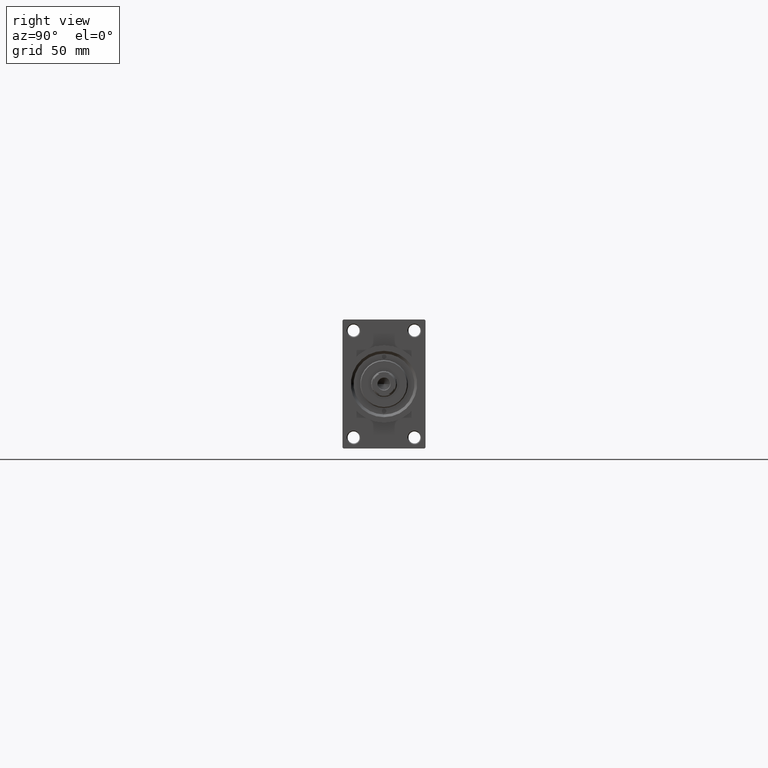
[diagram: clean part render]
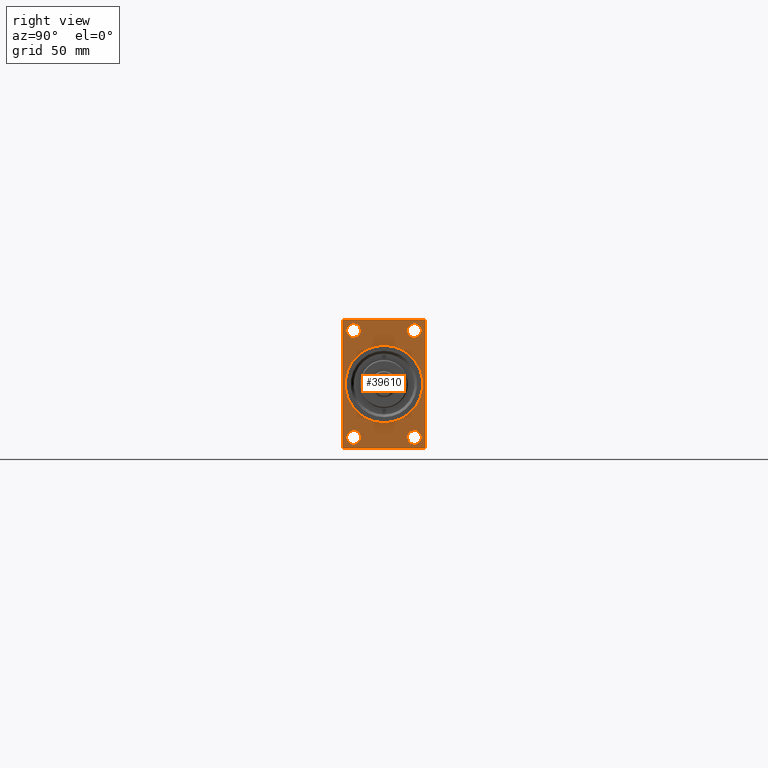
[diagram: same view with one face highlighted and labeled with its STEP entity id]
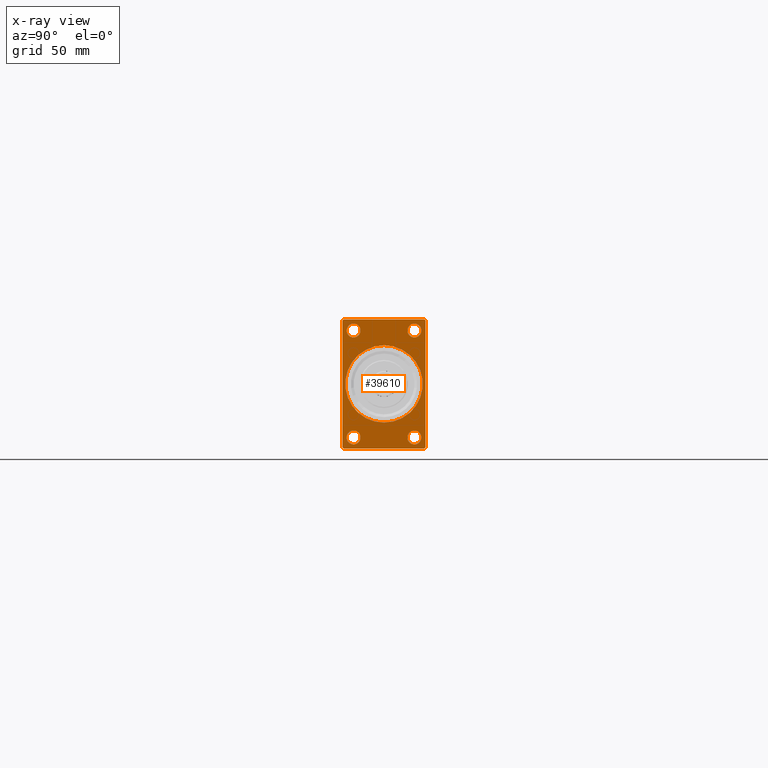
[diagram: x-ray of the same camera — body ghosted, the highlighted face saturated]
A machine part, right view. The second image highlights one B-rep face of the part: STEP entity #39610.
The next image is the same camera in x-ray: the body ghosted, the highlighted face saturated — about 0% of this face is hidden behind the body in this view.
In plain terms, the highlighted planar face has unit normal (-1, 0, 0).
Its self-contained STEP definition (entity closure, byte-faithful):
#11 = ORIENTED_EDGE ( 'NONE', *, *, #37777, .T. ) ;
#280 = AXIS2_PLACEMENT_3D ( 'NONE', #33953, #1137, #26532 ) ;
#412 = EDGE_CURVE ( 'NONE', #45872, #17856, #13058, .T. ) ;
#546 = CARTESIAN_POINT ( 'NONE',  ( 343.0000000000000000, -16.50000000000000000, 29.00000000000000711 ) ) ;
#600 = ORIENTED_EDGE ( 'NONE', *, *, #28172, .T. ) ;
#676 = FACE_BOUND ( 'NONE', #39892, .T. ) ;
#740 = CARTESIAN_POINT ( 'NONE',  ( 343.0000000000000000, 21.99999999999999645, 35.00000000000000000 ) ) ;
#743 = EDGE_CURVE ( 'NONE', #15599, #32668, #31444, .T. ) ;
#1137 = DIRECTION ( 'NONE',  ( -1.000000000000000000, -0.000000000000000000, -0.000000000000000000 ) ) ;
#1155 = VECTOR ( 'NONE', #3655, 1000.000000000000000 ) ;
#1689 = AXIS2_PLACEMENT_3D ( 'NONE', #41553, #38208, #33657 ) ;
#1796 = ORIENTED_EDGE ( 'NONE', *, *, #13371, .T. ) ;
#1938 = CARTESIAN_POINT ( 'NONE',  ( 343.0000000000000000, 22.49999999999999645, 35.00000000000000000 ) ) ;
#1939 = EDGE_CURVE ( 'NONE', #36198, #30710, #42370, .T. ) ;
#1959 = DIRECTION ( 'NONE',  ( 0.000000000000000000, 0.000000000000000000, -1.000000000000000000 ) ) ;
#2068 = LINE ( 'NONE', #20506, #35510 ) ;
#2746 = CARTESIAN_POINT ( 'NONE',  ( 343.0000000000000000, -16.50000000000000000, -25.24999999999996447 ) ) ;
#2754 = EDGE_CURVE ( 'NONE', #39687, #13042, #25034, .T. ) ;
#3104 = AXIS2_PLACEMENT_3D ( 'NONE', #17014, #6717, #28538 ) ;
#3655 = DIRECTION ( 'NONE',  ( 0.000000000000000000, 0.000000000000000000, -1.000000000000000000 ) ) ;
#4044 = CARTESIAN_POINT ( 'NONE',  ( 343.0000000000000000, 16.50000000000000000, -25.24999999999996447 ) ) ;
#4385 = CARTESIAN_POINT ( 'NONE',  ( 343.0000000000000000, -16.50000000000000000, 29.00000000000000711 ) ) ;
#4622 = CIRCLE ( 'NONE', #3104, 3.750000000000031086 ) ;
#4807 = CARTESIAN_POINT ( 'NONE',  ( 343.0000000000000000, 22.49999999999999645, -34.49999999999995026 ) ) ;
#5261 = VECTOR ( 'NONE', #41440, 1000.000000000000114 ) ;
#5474 = AXIS2_PLACEMENT_3D ( 'NONE', #27756, #29393, #43745 ) ;
#5542 = EDGE_LOOP ( 'NONE', ( #15469, #40895 ) ) ;
#6717 = DIRECTION ( 'NONE',  ( -1.000000000000000000, -0.000000000000000000, -0.000000000000000000 ) ) ;
#8090 = DIRECTION ( 'NONE',  ( -0.000000000000000000, 0.000000000000000000, 1.000000000000000000 ) ) ;
#8631 = CARTESIAN_POINT ( 'NONE',  ( 343.0000000000000000, -22.00000000000000355, -35.00000000000000000 ) ) ;
#8648 = CARTESIAN_POINT ( 'NONE',  ( 343.0000000000000000, 22.49999999999999645, -34.49999999999995026 ) ) ;
#9616 = LINE ( 'NONE', #1938, #34429 ) ;
#10083 = ORIENTED_EDGE ( 'NONE', *, *, #28199, .F. ) ;
#10191 = EDGE_CURVE ( 'NONE', #40725, #16054, #45257, .T. ) ;
#10783 = CIRCLE ( 'NONE', #19908, 3.750000000000027534 ) ;
#10871 = DIRECTION ( 'NONE',  ( -1.000000000000000000, -0.000000000000000000, -0.000000000000000000 ) ) ;
#10895 = DIRECTION ( 'NONE',  ( -1.000000000000000000, -0.000000000000000000, -0.000000000000000000 ) ) ;
#11323 = DIRECTION ( 'NONE',  ( 0.000000000000000000, 0.000000000000000000, 1.000000000000000000 ) ) ;
#11508 = VECTOR ( 'NONE', #1959, 1000.000000000000000 ) ;
#11709 = PLANE ( 'NONE',  #29902 ) ;
#12639 = CARTESIAN_POINT ( 'NONE',  ( 343.0000000000000000, -16.50000000000000000, 25.24999999999998224 ) ) ;
#12737 = CARTESIAN_POINT ( 'NONE',  ( 343.0000000000000000, -22.50000000000000355, 35.00000000000000000 ) ) ;
#12752 = CARTESIAN_POINT ( 'NONE',  ( 343.0000000000000000, 22.49999999999999645, -35.00000000000000000 ) ) ;
#13042 = VERTEX_POINT ( 'NONE', #44665 ) ;
#13058 = CIRCLE ( 'NONE', #36786, 3.750000000000034639 ) ;
#13371 = EDGE_CURVE ( 'NONE', #40197, #18257, #9616, .T. ) ;
#13616 = CARTESIAN_POINT ( 'NONE',  ( 343.0000000000000000, -22.50000000000000355, 34.49999999999995026 ) ) ;
#14432 = CARTESIAN_POINT ( 'NONE',  ( 343.0000000000000000, 16.50000000000000000, 29.00000000000000355 ) ) ;
#14856 = ORIENTED_EDGE ( 'NONE', *, *, #42045, .T. ) ;
#15469 = ORIENTED_EDGE ( 'NONE', *, *, #412, .T. ) ;
#15599 = VERTEX_POINT ( 'NONE', #41420 ) ;
#15655 = ORIENTED_EDGE ( 'NONE', *, *, #41062, .T. ) ;
#15738 = EDGE_LOOP ( 'NONE', ( #46926, #16219 ) ) ;
#16054 = VERTEX_POINT ( 'NONE', #8648 ) ;
#16219 = ORIENTED_EDGE ( 'NONE', *, *, #1939, .T. ) ;
#16513 = DIRECTION ( 'NONE',  ( -1.000000000000000000, -0.000000000000000000, -0.000000000000000000 ) ) ;
#16565 = EDGE_CURVE ( 'NONE', #17856, #45872, #31523, .T. ) ;
#17014 = CARTESIAN_POINT ( 'NONE',  ( 343.0000000000000000, 16.50000000000000000, 29.00000000000000355 ) ) ;
#17236 = AXIS2_PLACEMENT_3D ( 'NONE', #14432, #10871, #11323 ) ;
#17508 = VERTEX_POINT ( 'NONE', #23375 ) ;
#17691 = VERTEX_POINT ( 'NONE', #30278 ) ;
#17856 = VERTEX_POINT ( 'NONE', #4044 ) ;
#17969 = DIRECTION ( 'NONE',  ( 0.000000000000000000, -0.7071067811865474617, 0.7071067811865474617 ) ) ;
#18257 = VERTEX_POINT ( 'NONE', #31307 ) ;
#19541 = ORIENTED_EDGE ( 'NONE', *, *, #25040, .T. ) ;
#19805 = ORIENTED_EDGE ( 'NONE', *, *, #46639, .F. ) ;
#19908 = AXIS2_PLACEMENT_3D ( 'NONE', #4385, #43686, #29553 ) ;
#19909 = ORIENTED_EDGE ( 'NONE', *, *, #46155, .F. ) ;
#20506 = CARTESIAN_POINT ( 'NONE',  ( 343.0000000000000000, -22.50000000000000355, 34.49999999999995026 ) ) ;
#21160 = ORIENTED_EDGE ( 'NONE', *, *, #10191, .T. ) ;
#22933 = FACE_BOUND ( 'NONE', #15738, .T. ) ;
#23375 = CARTESIAN_POINT ( 'NONE',  ( 343.0000000000000000, 16.50000000000000000, 32.75000000000003553 ) ) ;
#23463 = LINE ( 'NONE', #8631, #23737 ) ;
#23486 = AXIS2_PLACEMENT_3D ( 'NONE', #546, #10895, #29542 ) ;
#23737 = VECTOR ( 'NONE', #38572, 1000.000000000000114 ) ;
#24643 = ORIENTED_EDGE ( 'NONE', *, *, #40418, .T. ) ;
#25034 = CIRCLE ( 'NONE', #23486, 3.750000000000027534 ) ;
#25040 = EDGE_CURVE ( 'NONE', #18257, #44207, #2068, .T. ) ;
#25785 = CARTESIAN_POINT ( 'NONE',  ( 343.0000000000000000, 16.50000000000000000, -28.99999999999999289 ) ) ;
#25994 = VECTOR ( 'NONE', #17969, 1000.000000000000114 ) ;
#26167 = CARTESIAN_POINT ( 'NONE',  ( 343.0000000000000000, 22.49999999999999645, 35.00000000000000000 ) ) ;
#26321 = CARTESIAN_POINT ( 'NONE',  ( 343.0000000000000000, 0.000000000000000000, 0.000000000000000000 ) ) ;
#26532 = DIRECTION ( 'NONE',  ( 0.000000000000000000, 0.000000000000000000, 1.000000000000000000 ) ) ;
#27090 = CARTESIAN_POINT ( 'NONE',  ( 343.0000000000000000, -16.50000000000000000, -28.99999999999999289 ) ) ;
#27250 = DIRECTION ( 'NONE',  ( -0.000000000000000000, -0.7071067811865474617, -0.7071067811865474617 ) ) ;
#27383 = DIRECTION ( 'NONE',  ( 0.000000000000000000, -1.000000000000000000, 0.000000000000000000 ) ) ;
#27489 = CARTESIAN_POINT ( 'NONE',  ( 343.0000000000000000, -16.50000000000000000, -32.75000000000002842 ) ) ;
#27756 = CARTESIAN_POINT ( 'NONE',  ( 343.0000000000000000, 16.50000000000000000, -28.99999999999999289 ) ) ;
#28172 = EDGE_CURVE ( 'NONE', #31166, #17508, #34835, .T. ) ;
#28199 = EDGE_CURVE ( 'NONE', #35775, #16054, #36483, .T. ) ;
#28538 = DIRECTION ( 'NONE',  ( 0.000000000000000000, 0.000000000000000000, 1.000000000000000000 ) ) ;
#28778 = CARTESIAN_POINT ( 'NONE',  ( 343.0000000000000000, 0.000000000000000000, 0.000000000000000000 ) ) ;
#29068 = EDGE_LOOP ( 'NONE', ( #15655, #14856, #19805, #21160, #10083, #24643, #1796, #19541 ) ) ;
#29159 = DIRECTION ( 'NONE',  ( 0.000000000000000000, 0.000000000000000000, 1.000000000000000000 ) ) ;
#29265 = CIRCLE ( 'NONE', #41477, 3.750000000000034639 ) ;
#29393 = DIRECTION ( 'NONE',  ( -1.000000000000000000, -0.000000000000000000, -0.000000000000000000 ) ) ;
#29542 = DIRECTION ( 'NONE',  ( 0.000000000000000000, 0.000000000000000000, 1.000000000000000000 ) ) ;
#29553 = DIRECTION ( 'NONE',  ( 0.000000000000000000, 0.000000000000000000, 1.000000000000000000 ) ) ;
#29672 = LINE ( 'NONE', #36635, #25994 ) ;
#29902 = AXIS2_PLACEMENT_3D ( 'NONE', #26321, #40909, #8090 ) ;
#29903 = FACE_OUTER_BOUND ( 'NONE', #29068, .T. ) ;
#30143 = FACE_BOUND ( 'NONE', #36150, .T. ) ;
#30278 = CARTESIAN_POINT ( 'NONE',  ( 343.0000000000000000, -21.99999999999998934, -35.00000000000000000 ) ) ;
#30710 = VERTEX_POINT ( 'NONE', #27489 ) ;
#31155 = DIRECTION ( 'NONE',  ( 0.000000000000000000, 0.000000000000000000, 1.000000000000000000 ) ) ;
#31166 = VERTEX_POINT ( 'NONE', #46263 ) ;
#31307 = CARTESIAN_POINT ( 'NONE',  ( 343.0000000000000000, -21.99999999999993250, 35.00000000000000000 ) ) ;
#31444 = CIRCLE ( 'NONE', #45170, 21.00000000000000000 ) ;
#31447 = LINE ( 'NONE', #12737, #11508 ) ;
#31523 = CIRCLE ( 'NONE', #5474, 3.750000000000034639 ) ;
#31568 = CIRCLE ( 'NONE', #1689, 21.00000000000000000 ) ;
#32668 = VERTEX_POINT ( 'NONE', #39943 ) ;
#32989 = DIRECTION ( 'NONE',  ( -1.000000000000000000, -0.000000000000000000, -0.000000000000000000 ) ) ;
#33244 = EDGE_LOOP ( 'NONE', ( #36316, #19909 ) ) ;
#33300 = DIRECTION ( 'NONE',  ( 1.000000000000000000, 0.000000000000000000, 0.000000000000000000 ) ) ;
#33657 = DIRECTION ( 'NONE',  ( 0.000000000000000000, 0.000000000000000000, -1.000000000000000000 ) ) ;
#33953 = CARTESIAN_POINT ( 'NONE',  ( 343.0000000000000000, -16.50000000000000000, -28.99999999999999289 ) ) ;
#33971 = FACE_BOUND ( 'NONE', #5542, .T. ) ;
#34429 = VECTOR ( 'NONE', #41929, 1000.000000000000000 ) ;
#34835 = CIRCLE ( 'NONE', #17236, 3.750000000000031086 ) ;
#35510 = VECTOR ( 'NONE', #27250, 1000.000000000000114 ) ;
#35775 = VERTEX_POINT ( 'NONE', #44482 ) ;
#36150 = EDGE_LOOP ( 'NONE', ( #40610, #43666 ) ) ;
#36198 = VERTEX_POINT ( 'NONE', #2746 ) ;
#36316 = ORIENTED_EDGE ( 'NONE', *, *, #743, .F. ) ;
#36483 = LINE ( 'NONE', #26167, #1155 ) ;
#36635 = CARTESIAN_POINT ( 'NONE',  ( 343.0000000000000000, 21.99999999999999645, 35.00000000000000000 ) ) ;
#36786 = AXIS2_PLACEMENT_3D ( 'NONE', #25785, #32989, #29159 ) ;
#37777 = EDGE_CURVE ( 'NONE', #17508, #31166, #4622, .T. ) ;
#38208 = DIRECTION ( 'NONE',  ( 1.000000000000000000, 0.000000000000000000, 0.000000000000000000 ) ) ;
#38228 = EDGE_CURVE ( 'NONE', #13042, #39687, #10783, .T. ) ;
#38455 = VECTOR ( 'NONE', #27383, 1000.000000000000000 ) ;
#38572 = DIRECTION ( 'NONE',  ( 0.000000000000000000, 0.7071067811865474617, -0.7071067811865474617 ) ) ;
#38636 = LINE ( 'NONE', #12752, #38455 ) ;
#39610 = ADVANCED_FACE ( 'NONE', ( #30143, #22933, #33971, #676, #41377, #29903 ), #11709, .F. ) ;
#39687 = VERTEX_POINT ( 'NONE', #12639 ) ;
#39892 = EDGE_LOOP ( 'NONE', ( #600, #11 ) ) ;
#39943 = CARTESIAN_POINT ( 'NONE',  ( 343.0000000000000000, 2.571758278209441661E-15, -21.00000000000000000 ) ) ;
#40197 = VERTEX_POINT ( 'NONE', #740 ) ;
#40418 = EDGE_CURVE ( 'NONE', #35775, #40197, #29672, .T. ) ;
#40610 = ORIENTED_EDGE ( 'NONE', *, *, #2754, .T. ) ;
#40725 = VERTEX_POINT ( 'NONE', #44196 ) ;
#40895 = ORIENTED_EDGE ( 'NONE', *, *, #16565, .T. ) ;
#40909 = DIRECTION ( 'NONE',  ( -1.000000000000000000, 0.000000000000000000, -0.000000000000000000 ) ) ;
#41062 = EDGE_CURVE ( 'NONE', #44207, #45513, #31447, .T. ) ;
#41195 = CARTESIAN_POINT ( 'NONE',  ( 343.0000000000000000, 16.50000000000000000, -32.75000000000002842 ) ) ;
#41377 = FACE_BOUND ( 'NONE', #33244, .T. ) ;
#41420 = CARTESIAN_POINT ( 'NONE',  ( 343.0000000000000000, 0.000000000000000000, 21.00000000000000000 ) ) ;
#41440 = DIRECTION ( 'NONE',  ( -0.000000000000000000, 0.7071067811865474617, 0.7071067811865474617 ) ) ;
#41477 = AXIS2_PLACEMENT_3D ( 'NONE', #27090, #16513, #31155 ) ;
#41553 = CARTESIAN_POINT ( 'NONE',  ( 343.0000000000000000, 0.000000000000000000, 0.000000000000000000 ) ) ;
#41929 = DIRECTION ( 'NONE',  ( 0.000000000000000000, -1.000000000000000000, 0.000000000000000000 ) ) ;
#42045 = EDGE_CURVE ( 'NONE', #45513, #17691, #23463, .T. ) ;
#42262 = CARTESIAN_POINT ( 'NONE',  ( 343.0000000000000000, -22.50000000000000355, -34.50000000000000000 ) ) ;
#42370 = CIRCLE ( 'NONE', #280, 3.750000000000034639 ) ;
#43666 = ORIENTED_EDGE ( 'NONE', *, *, #38228, .T. ) ;
#43686 = DIRECTION ( 'NONE',  ( -1.000000000000000000, -0.000000000000000000, -0.000000000000000000 ) ) ;
#43745 = DIRECTION ( 'NONE',  ( 0.000000000000000000, 0.000000000000000000, 1.000000000000000000 ) ) ;
#44196 = CARTESIAN_POINT ( 'NONE',  ( 343.0000000000000000, 21.99999999999993960, -35.00000000000000000 ) ) ;
#44207 = VERTEX_POINT ( 'NONE', #13616 ) ;
#44482 = CARTESIAN_POINT ( 'NONE',  ( 343.0000000000000000, 22.49999999999999645, 34.50000000000000000 ) ) ;
#44665 = CARTESIAN_POINT ( 'NONE',  ( 343.0000000000000000, -16.50000000000000000, 32.75000000000003553 ) ) ;
#45170 = AXIS2_PLACEMENT_3D ( 'NONE', #28778, #33300, #46955 ) ;
#45257 = LINE ( 'NONE', #4807, #5261 ) ;
#45513 = VERTEX_POINT ( 'NONE', #42262 ) ;
#45872 = VERTEX_POINT ( 'NONE', #41195 ) ;
#46002 = EDGE_CURVE ( 'NONE', #30710, #36198, #29265, .T. ) ;
#46155 = EDGE_CURVE ( 'NONE', #32668, #15599, #31568, .T. ) ;
#46263 = CARTESIAN_POINT ( 'NONE',  ( 343.0000000000000000, 16.50000000000000000, 25.24999999999997513 ) ) ;
#46639 = EDGE_CURVE ( 'NONE', #40725, #17691, #38636, .T. ) ;
#46926 = ORIENTED_EDGE ( 'NONE', *, *, #46002, .T. ) ;
#46955 = DIRECTION ( 'NONE',  ( 0.000000000000000000, 0.000000000000000000, -1.000000000000000000 ) ) ;